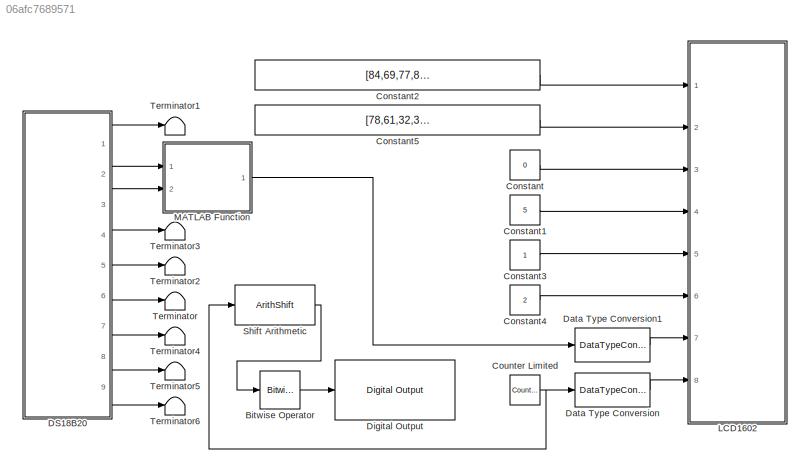
MODEL slx_06afc7689571
KIND model
CONFIG AbsTol = auto
CONFIG FixedStep = auto
CONFIG MaxStep = auto
CONFIG MinStep = auto
CONFIG RelTol = 1e-3
CONFIG SampleTimeConstraint = Unconstrained
CONFIG Solver = ode45
CONFIG SolverMode = Auto
CONFIG SolverName = ode45
CONFIG StartTime = 0.0
CONFIG StopTime = 10.0
BLOCK [Reference] Bitwise Operator  REF=simulink/Logic and Bit
Operations/Bitwise
Operator
  BitMask = bin2dec('1')
  BitMaskRealWorld = Stored Integer
  NumInputPorts = 1
  Ports = [1, 1]
  SourceBlock = simulink/Logic and Bit\nOperations/Bitwise\nOperator
  SourceType = Bitwise Operator
  UseBitMask = on
  logicop = AND
BLOCK [Constant] Constant
  LockScale = on
  OutDataTypeStr = uint8
  Value = 0
BLOCK [Constant] Constant1
  LockScale = on
  OutDataTypeStr = uint8
  Value = 5
BLOCK [Constant] Constant2
  OutDataTypeStr = fixdt('uint8', 'DataTypeOverride', 'Off')
  Value = [84,69,77,80,61,48,48,48,48,48,48,223,67,32,32,32]
BLOCK [Constant] Constant3
  OutDataTypeStr = uint8
BLOCK [Constant] Constant4
  LockScale = on
  OutDataTypeStr = uint8
  Value = 2
BLOCK [Constant] Constant5
  OutDataTypeStr = uint8
  Value = [78,61,32,32,32,32,32,32,32,32,32,32,32,32,32,32]
BLOCK [Reference] Counter Limited  REF=simulink/Sources/Counter
Limited
  Ports = [0, 1]
  SourceBlock = simulink/Sources/Counter\nLimited
  SourceType = Counter Limited
  tsamp = -1
  uplimit = 100000
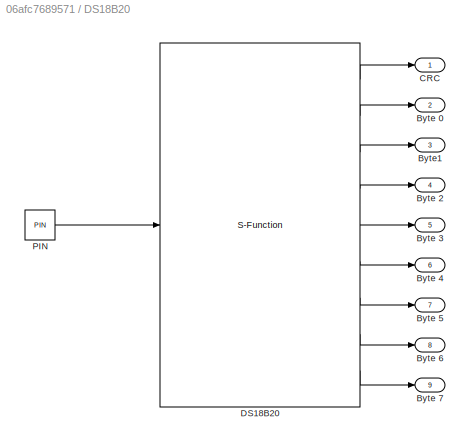
BLOCK [SubSystem] DS18B20
  Ports = [0, 9]
  RequestExecContextInheritance = off
BLOCK [Outport] DS18B20/Byte 0
  IconDisplay = Port number
  Port = 2
BLOCK [Outport] DS18B20/Byte 2
  IconDisplay = Port number
  Port = 4
BLOCK [Outport] DS18B20/Byte 3
  IconDisplay = Port number
  Port = 5
BLOCK [Outport] DS18B20/Byte 4
  IconDisplay = Port number
  Port = 6
BLOCK [Outport] DS18B20/Byte 5
  IconDisplay = Port number
  Port = 7
BLOCK [Outport] DS18B20/Byte 6
  IconDisplay = Port number
  Port = 8
BLOCK [Outport] DS18B20/Byte 7
  IconDisplay = Port number
  Port = 9
BLOCK [Outport] DS18B20/Byte1
  IconDisplay = Port number
  Port = 3
BLOCK [Outport] DS18B20/CRC
  IconDisplay = Port number
BLOCK [S-Function] DS18B20/DS18B20
  CopyFcn = set_param(gcbh,'LinkStatus','none')
  FunctionName = DS18B20_03
  InitFcn = try, set_param(gcb,'FunctionName','DS18B20_03'), end
  OpenFcn = sfunctionwizard(gcbh)
  Ports = [1, 9]
  PreSaveFcn = try, set_param(gcb,'FunctionName','DS18B20_03'), end
  SFunctionModules = DS18B20_03_wrapper
BLOCK [Constant] DS18B20/PIN
  OutDataTypeStr = uint8
  Value = PIN
BLOCK [DataTypeConversion] Data Type Conversion
  OutDataTypeStr = single
  RndMeth = Floor
  SaturateOnIntegerOverflow = off
BLOCK [DataTypeConversion] Data Type Conversion1
  OutDataTypeStr = single
  RndMeth = Floor
  SaturateOnIntegerOverflow = off
BLOCK [Reference] Digital Output  REF=arduinolib/Digital Output
  Ports = [1]
  SourceBlock = arduinolib/Digital Output
  SourceType = Arduino Digital Output
  blockPlatform = arduino
  pinNumber = 32
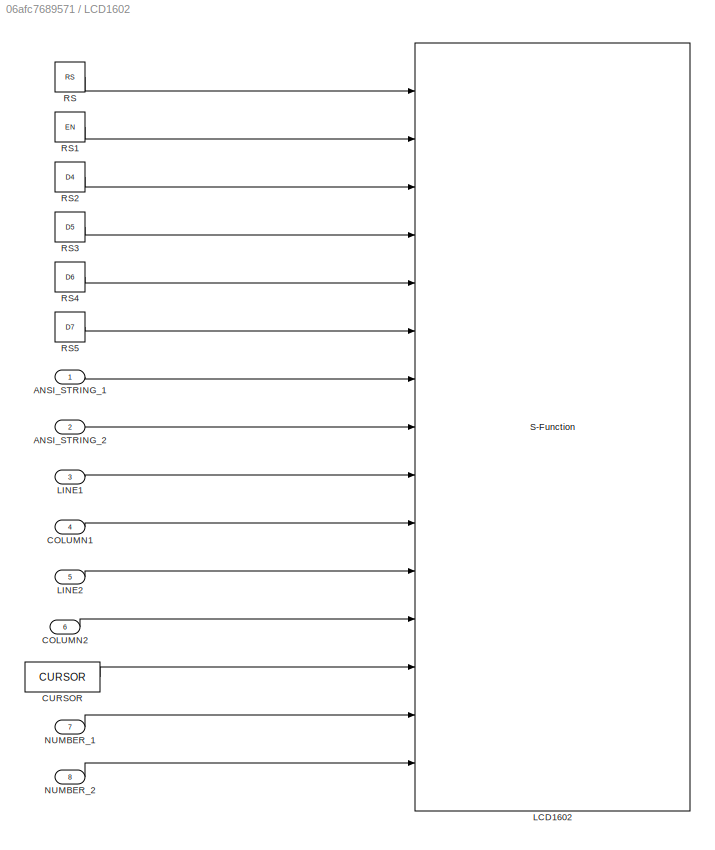
BLOCK [SubSystem] LCD1602
  Ports = [8]
  RequestExecContextInheritance = off
BLOCK [Inport] LCD1602/ANSI_STRING_1
  IconDisplay = Port number
BLOCK [Inport] LCD1602/ANSI_STRING_2
  IconDisplay = Port number
  Port = 2
BLOCK [Inport] LCD1602/COLUMN1
  IconDisplay = Port number
  Port = 4
BLOCK [Inport] LCD1602/COLUMN2
  IconDisplay = Port number
  Port = 6
BLOCK [Constant] LCD1602/CURSOR
  OutDataTypeStr = uint8
  Value = CURSOR
BLOCK [S-Function] LCD1602/LCD1602
  CopyFcn = set_param(gcbh,'LinkStatus','none')
  FunctionName = LCD1602_02
  InitFcn = try, set_param(gcb,'FunctionName','LCD1602_02'), end
  OpenFcn = sfunctionwizard(gcbh)
  Ports = [15]
  PreSaveFcn = try, set_param(gcb,'FunctionName','LCD1602_02'), end
  SFunctionModules = LCD1602_02_wrapper
BLOCK [Inport] LCD1602/LINE1
  IconDisplay = Port number
  Port = 3
BLOCK [Inport] LCD1602/LINE2
  IconDisplay = Port number
  Port = 5
BLOCK [Inport] LCD1602/NUMBER_1
  IconDisplay = Port number
  Port = 7
BLOCK [Inport] LCD1602/NUMBER_2
  IconDisplay = Port number
  Port = 8
BLOCK [Constant] LCD1602/RS
  OutDataTypeStr = uint8
  Value = RS
BLOCK [Constant] LCD1602/RS1
  OutDataTypeStr = uint8
  Value = EN
BLOCK [Constant] LCD1602/RS2
  OutDataTypeStr = uint8
  Value = D4
BLOCK [Constant] LCD1602/RS3
  OutDataTypeStr = uint8
  Value = D5
BLOCK [Constant] LCD1602/RS4
  OutDataTypeStr = uint8
  Value = D6
BLOCK [Constant] LCD1602/RS5
  OutDataTypeStr = uint8
  Value = D7
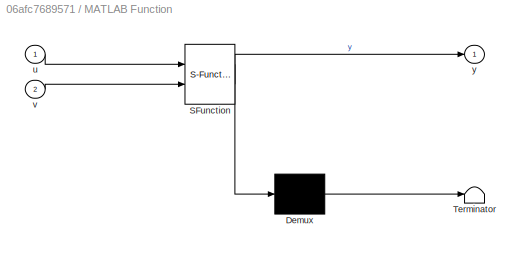
BLOCK [SubSystem] MATLAB Function
  ErrorFcn = Stateflow.Translate.translate
  PermitHierarchicalResolution = ExplicitOnly
  Ports = [2, 1]
  RequestExecContextInheritance = off
  SFBlockType = MATLAB Function
  TreatAsAtomicUnit = on
BLOCK [Demux] MATLAB Function/ Demux 
  Outputs = 1
  Ports = [1, 1]
BLOCK [S-Function] MATLAB Function/ SFunction 
  EnableBusSupport = on
  FunctionName = sf_sfun
  PortCounts = [2 2]
  Ports = [2, 2]
  Tag = Stateflow S-Function yamashev 2
BLOCK [Terminator] MATLAB Function/ Terminator 
BLOCK [Inport] MATLAB Function/u
  IconDisplay = Port number
BLOCK [Inport] MATLAB Function/v
  IconDisplay = Port number
  Port = 2
BLOCK [Outport] MATLAB Function/y
  IconDisplay = Port number
BLOCK [ArithShift] Shift Arithmetic
  BitShiftDirection = Right
  BitShiftNumber = 1
  InputPortMap = u0
  Ports = [1, 1]
BLOCK [Terminator] Terminator
BLOCK [Terminator] Terminator1
BLOCK [Terminator] Terminator2
BLOCK [Terminator] Terminator3
BLOCK [Terminator] Terminator4
BLOCK [Terminator] Terminator5
BLOCK [Terminator] Terminator6
LINE Bitwise Operator:1 -> Digital Output:1
LINE Constant1:1 -> LCD1602:4
LINE Constant2:1 -> LCD1602:1
LINE Constant3:1 -> LCD1602:5
LINE Constant4:1 -> LCD1602:6
LINE Constant5:1 -> LCD1602:2
LINE Constant:1 -> LCD1602:3
NET Counter Limited:1 -> Data Type Conversion:1, Shift Arithmetic:1
LINE DS18B20/DS18B20:1 -> DS18B20/CRC:1
LINE DS18B20/DS18B20:2 -> DS18B20/Byte 0:1
LINE DS18B20/DS18B20:3 -> DS18B20/Byte1:1
LINE DS18B20/DS18B20:4 -> DS18B20/Byte 2:1
LINE DS18B20/DS18B20:5 -> DS18B20/Byte 3:1
LINE DS18B20/DS18B20:6 -> DS18B20/Byte 4:1
LINE DS18B20/DS18B20:7 -> DS18B20/Byte 5:1
LINE DS18B20/DS18B20:8 -> DS18B20/Byte 6:1
LINE DS18B20/DS18B20:9 -> DS18B20/Byte 7:1
LINE DS18B20/PIN:1 -> DS18B20/DS18B20:1
LINE DS18B20:1 -> Terminator1:1
LINE DS18B20:2 -> MATLAB Function:1
LINE DS18B20:3 -> MATLAB Function:2
LINE DS18B20:4 -> Terminator3:1
LINE DS18B20:5 -> Terminator2:1
LINE DS18B20:6 -> Terminator:1
LINE DS18B20:7 -> Terminator4:1
LINE DS18B20:8 -> Terminator5:1
LINE DS18B20:9 -> Terminator6:1
LINE Data Type Conversion1:1 -> LCD1602:7
LINE Data Type Conversion:1 -> LCD1602:8
LINE LCD1602/ANSI_STRING_1:1 -> LCD1602/LCD1602:7
LINE LCD1602/ANSI_STRING_2:1 -> LCD1602/LCD1602:8
LINE LCD1602/COLUMN1:1 -> LCD1602/LCD1602:10
LINE LCD1602/COLUMN2:1 -> LCD1602/LCD1602:12
LINE LCD1602/CURSOR:1 -> LCD1602/LCD1602:13
LINE LCD1602/LINE1:1 -> LCD1602/LCD1602:9
LINE LCD1602/LINE2:1 -> LCD1602/LCD1602:11
LINE LCD1602/NUMBER_1:1 -> LCD1602/LCD1602:14
LINE LCD1602/NUMBER_2:1 -> LCD1602/LCD1602:15
LINE LCD1602/RS1:1 -> LCD1602/LCD1602:2
LINE LCD1602/RS2:1 -> LCD1602/LCD1602:3
LINE LCD1602/RS3:1 -> LCD1602/LCD1602:4
LINE LCD1602/RS4:1 -> LCD1602/LCD1602:5
LINE LCD1602/RS5:1 -> LCD1602/LCD1602:6
LINE LCD1602/RS:1 -> LCD1602/LCD1602:1
LINE MATLAB Function:1 -> Data Type Conversion1:1
LINE Shift Arithmetic:1 -> Bitwise Operator:1
note: NET lines group one-source signal fan-out (src -> all destinations, sorted); 1:1 wires keep LINE
CHART MATLAB Function states=1 transitions=1
  STATE_LABEL 'eML_blk_kernel()'
  STATE_LABEL 'SCRIPT:\nfunction y = combine(u, v)\n    y = bitor(bitshift(v, 8), bitand(u, 255)) / 2.0;\nend'
